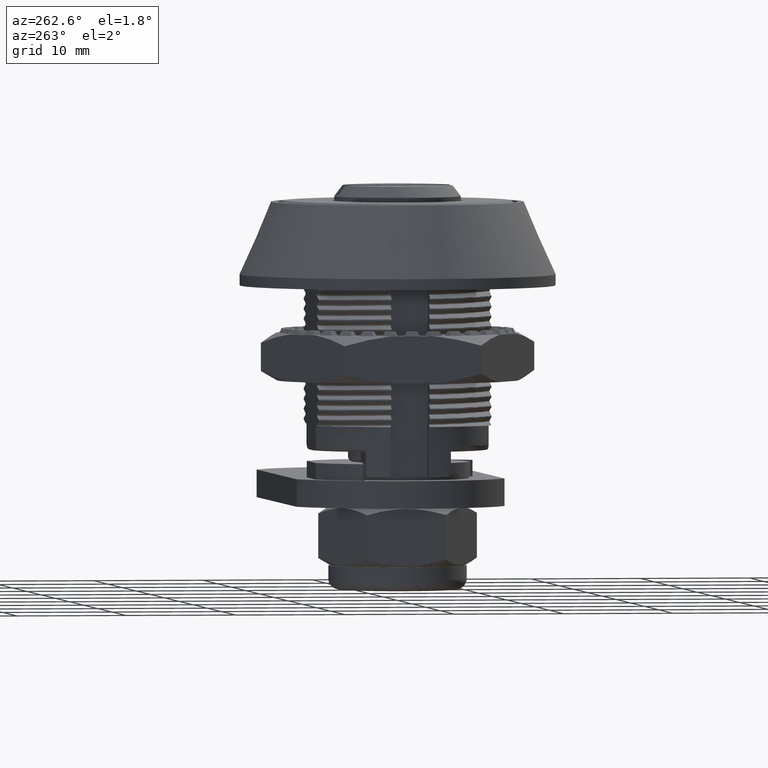
[diagram: clean part render]
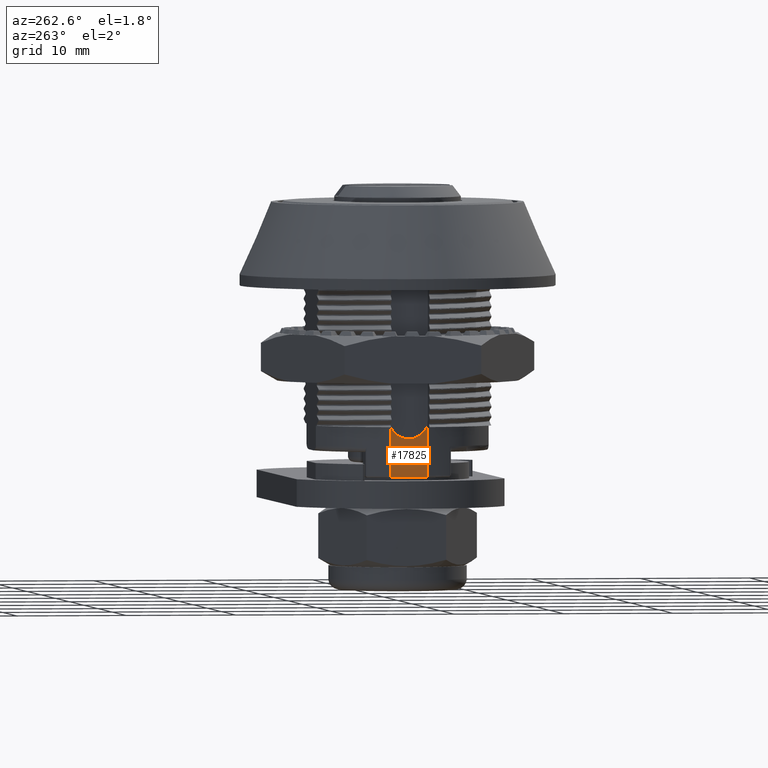
[diagram: same view with one face highlighted and labeled with its STEP entity id]
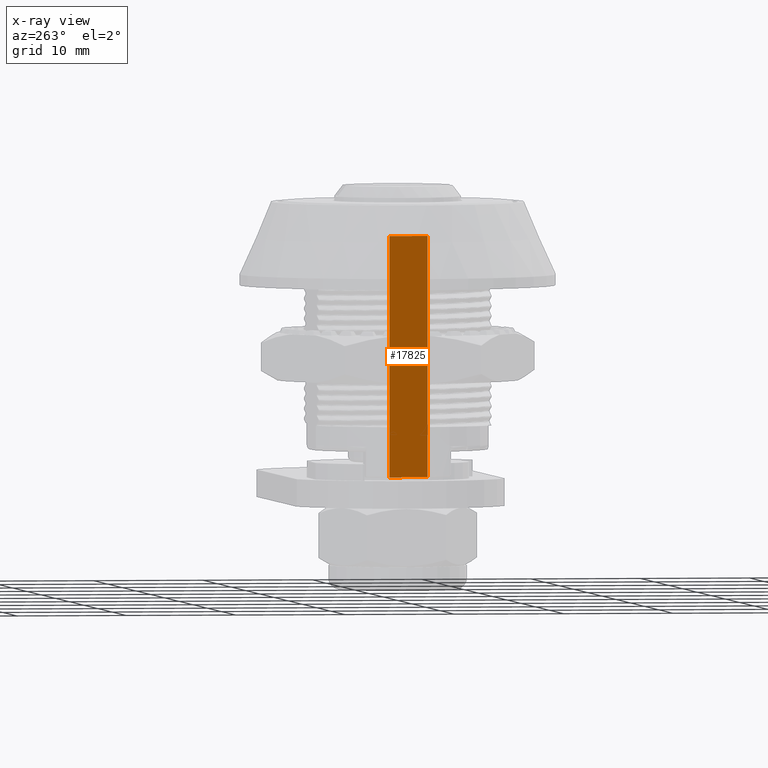
[diagram: x-ray of the same camera — body ghosted, the highlighted face saturated]
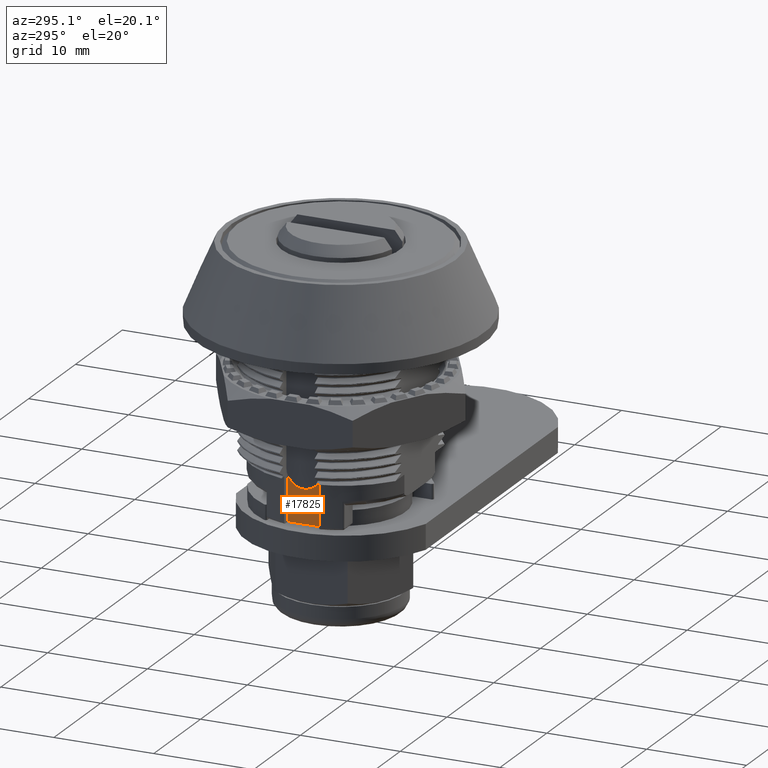
[diagram: same view with one face highlighted and labeled with its STEP entity id]
A machine part, auxiliary view. The second image highlights one B-rep face of the part: STEP entity #17825.
The next image is the same camera in x-ray: the body ghosted, the highlighted face saturated — about 0% of this face is hidden behind the body in this view.
A second angle (auxiliary view) of the same face is appended — the face is thin or edge-on in the first view.
In plain terms, the highlighted planar face has unit normal (1, 0, 0).
Its self-contained STEP definition (entity closure, byte-faithful):
#2756=LINE('',#28952,#3569);
#2781=LINE('',#30150,#3594);
#2923=LINE('',#44009,#3736);
#2950=LINE('',#45661,#3763);
#3569=VECTOR('',#19381,21.9);
#3594=VECTOR('',#19412,3.5);
#3736=VECTOR('',#19718,3.5);
#3763=VECTOR('',#19757,21.9);
#4344=PLANE('',#18603);
#5109=FACE_OUTER_BOUND('',#6131,.T.);
#6131=EDGE_LOOP('',(#14984,#14985,#14986,#14987));
#7217=VERTEX_POINT('',#28949);
#7218=VERTEX_POINT('',#28951);
#7358=VERTEX_POINT('',#30148);
#8197=VERTEX_POINT('',#44008);
#9295=EDGE_CURVE('',#7218,#7217,#2756,.T.);
#9437=EDGE_CURVE('',#7358,#7217,#2781,.T.);
#10560=EDGE_CURVE('',#8197,#7218,#2923,.T.);
#10730=EDGE_CURVE('',#8197,#7358,#2950,.T.);
#14984=ORIENTED_EDGE('',*,*,#10560,.T.);
#14985=ORIENTED_EDGE('',*,*,#9295,.T.);
#14986=ORIENTED_EDGE('',*,*,#9437,.F.);
#14987=ORIENTED_EDGE('',*,*,#10730,.F.);
#17825=ADVANCED_FACE('',(#5109),#4344,.F.);
#18603=AXIS2_PLACEMENT_3D('',#45662,#19758,#19759);
#19381=DIRECTION('',(0.,4.82705662880503E-16,-1.));
#19412=DIRECTION('',(0.,1.,4.31772930828453E-16));
#19718=DIRECTION('',(0.,1.,4.31772930828453E-16));
#19757=DIRECTION('',(0.,4.82705662880503E-16,-1.));
#19758=DIRECTION('center_axis',(1.,0.,0.));
#19759=DIRECTION('ref_axis',(0.,1.,0.));
#28949=CARTESIAN_POINT('',(-7.6,1.75000000000001,-24.9));
#28951=CARTESIAN_POINT('',(-7.6,1.75,-3.));
#28952=CARTESIAN_POINT('',(-7.6,1.75000000000001,-22.6));
#30148=CARTESIAN_POINT('',(-7.6,-1.74999999999999,-24.9));
#30150=CARTESIAN_POINT('',(-7.6,-1.74999999999999,-24.9));
#44008=CARTESIAN_POINT('',(-7.6,-1.75,-3.));
#44009=CARTESIAN_POINT('',(-7.6,-0.874999999999998,-3.));
#45661=CARTESIAN_POINT('',(-7.6,-1.74999999999999,-22.6));
#45662=CARTESIAN_POINT('Origin',(-7.6,-1.74999999999999,-22.6));